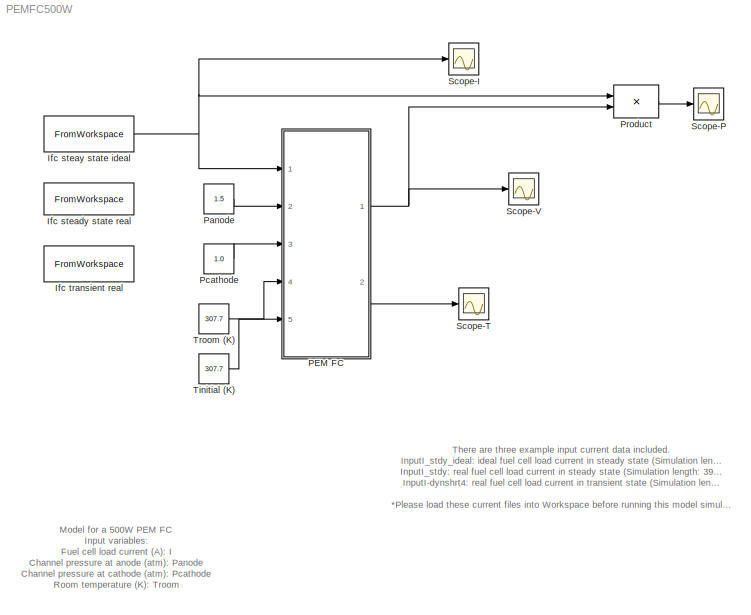
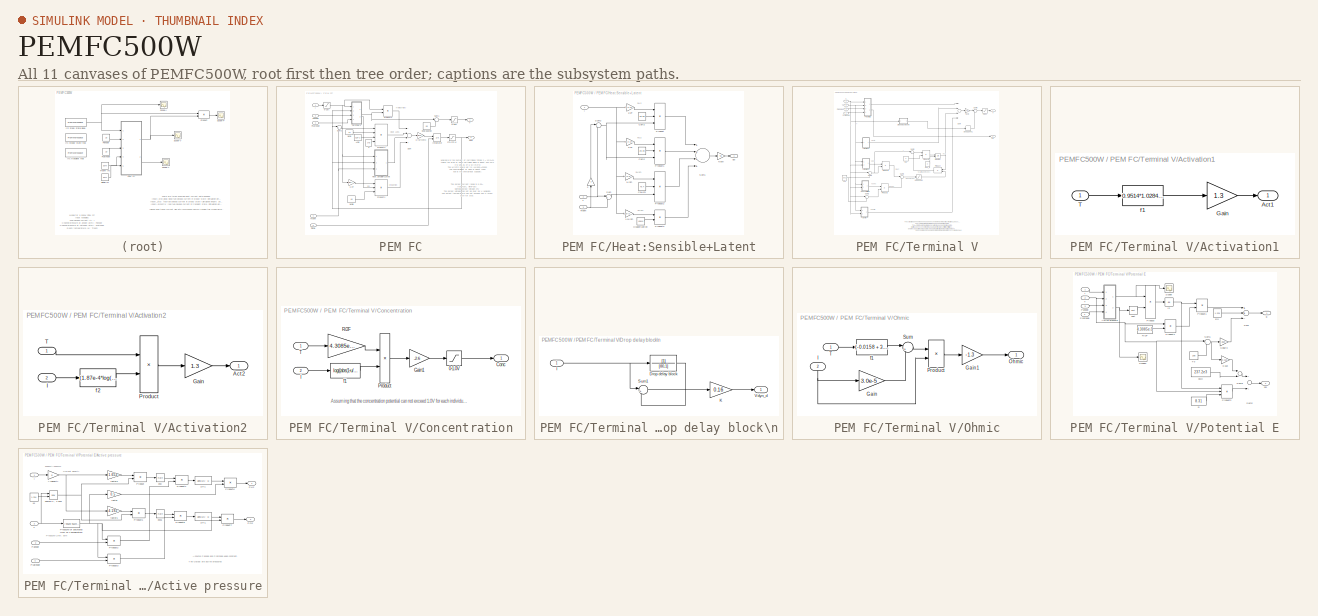
[diagram: thumbnail index - all 11 canvases of the model, root first then tree order]
MODEL PEMFC500W
KIND model
BLOCK [FromWorkspace] Ifc steady state real
  SampleTime = 0
  VariableName = InputI_stdy
BLOCK [FromWorkspace] Ifc steay state ideal
  SampleTime = 0
  VariableName = InputI_stdy_ideal
BLOCK [FromWorkspace] Ifc transient real
  SampleTime = 0
  VariableName = InputI_dynshrt4
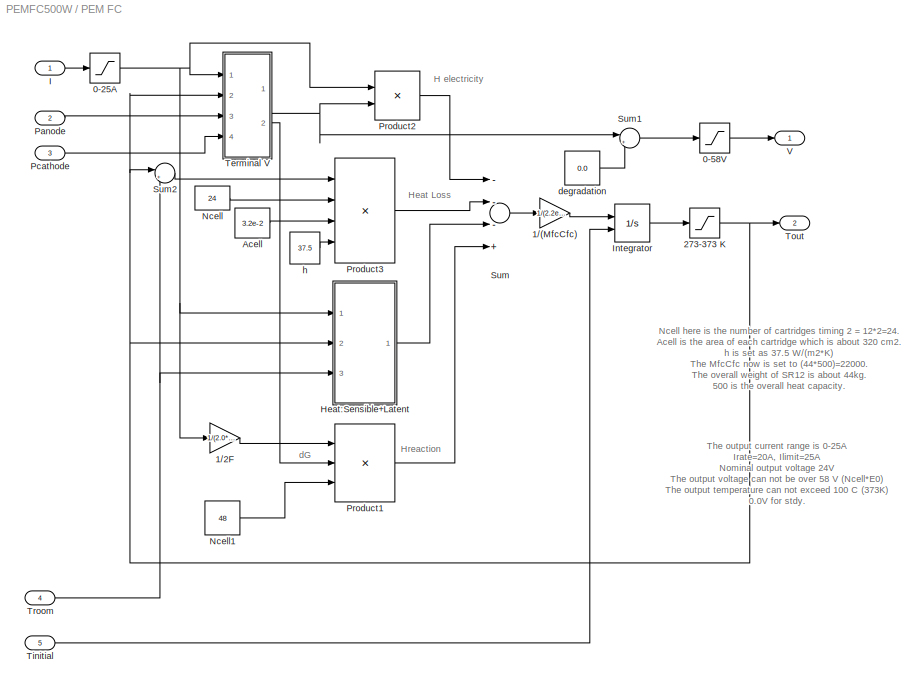
BLOCK [SubSystem] PEM FC
  MaskIconFrame = on
  MaskIconOpaque = on
  MaskIconRotate = none
  MaskIconUnits = autoscale
  MinAlgLoopOccurrences = off
  Ports = [5, 2]
  RTWSystemCode = Auto
  TreatAsAtomicUnit = off
BLOCK [Saturate] PEM FC/0-25A
  LowerLimit = 0
  UpperLimit = 25
BLOCK [Saturate] PEM FC/0-58V
  LowerLimit = 0
  UpperLimit = 58
BLOCK [Gain] PEM FC/1//(MfcCfc)
  Gain = 1/(2.2e4)
BLOCK [Gain] PEM FC/1//2F
  Gain = 1/(2.0*96487.0)
BLOCK [Saturate] PEM FC/273-373 K
  LowerLimit = 273.15
  UpperLimit = 373.15
BLOCK [Constant] PEM FC/Acell
  Value = 3.2e-2
BLOCK [SubSystem] PEM FC/Heat:Sensible+Latent
  MinAlgLoopOccurrences = off
  Ports = [3, 1]
  RTWSystemCode = Auto
  TreatAsAtomicUnit = off
BLOCK [Gain] PEM FC/Heat:Sensible+Latent/1.0//(2F)
  Gain = 1.0/(2.0*96487.0)
BLOCK [Gain] PEM FC/Heat:Sensible+Latent/1//(2F)
  Gain = 1/(2.0*96487.0)
BLOCK [Gain] PEM FC/Heat:Sensible+Latent/1//2F
  Gain = 1/(2.0*96487.0)
BLOCK [Gain] PEM FC/Heat:Sensible+Latent/1//4F
  Gain = 1/(4.0*96487.0)
BLOCK [Gain] PEM FC/Heat:Sensible+Latent/2
  Gain = 2
BLOCK [Constant] PEM FC/Heat:Sensible+Latent/CpH2
  Value = 28.68
BLOCK [Constant] PEM FC/Heat:Sensible+Latent/CpH2O
  Value = 75.4
BLOCK [Constant] PEM FC/Heat:Sensible+Latent/CpO2
  Value = 29.39
BLOCK [Constant] PEM FC/Heat:Sensible+Latent/Hvaporization
  Value = 40644
BLOCK [Inport] PEM FC/Heat:Sensible+Latent/I
  IconDisplay = Port number
  LatchInput = off
  Port = 1
BLOCK [Gain] PEM FC/Heat:Sensible+Latent/Ncell
  Gain = 48
BLOCK [Product] PEM FC/Heat:Sensible+Latent/Product
  InputSameDT = off
  Inputs = 3
  Ports = [3, 1]
  RndMeth = Floor
BLOCK [Product] PEM FC/Heat:Sensible+Latent/Product1
  InputSameDT = off
  Inputs = 3
  Ports = [3, 1]
  RndMeth = Floor
BLOCK [Product] PEM FC/Heat:Sensible+Latent/Product2
  InputSameDT = off
  Inputs = 3
  Ports = [3, 1]
  RndMeth = Floor
BLOCK [Product] PEM FC/Heat:Sensible+Latent/Product3
  InputSameDT = off
  Ports = [2, 1]
  RndMeth = Floor
BLOCK [Sum] PEM FC/Heat:Sensible+Latent/Sum
  IconShape = round
  InputSameDT = off
  Inputs = |+-
  OutDataTypeMode = Inherit via internal rule
  Ports = [2, 1]
BLOCK [Sum] PEM FC/Heat:Sensible+Latent/Sum1
  InputSameDT = off
  Inputs = ++++
  OutDataTypeMode = Inherit via internal rule
  Ports = [4, 1]
BLOCK [Sum] PEM FC/Heat:Sensible+Latent/Sum2
  IconShape = round
  InputSameDT = off
  Inputs = |+-
  OutDataTypeMode = Inherit via internal rule
  Ports = [2, 1]
BLOCK [Inport] PEM FC/Heat:Sensible+Latent/T
  IconDisplay = Port number
  LatchInput = off
  Port = 2
BLOCK [Inport] PEM FC/Heat:Sensible+Latent/Troom
  IconDisplay = Port number
  LatchInput = off
  Port = 3
BLOCK [Outport] PEM FC/Heat:Sensible+Latent/qsl
  IconDisplay = Port number
BLOCK [Inport] PEM FC/I
  IconDisplay = Port number
  LatchInput = off
  Port = 1
BLOCK [Integrator] PEM FC/Integrator
  InitialConditionSource = external
  Ports = [2, 1]
BLOCK [Constant] PEM FC/Ncell
  Value = 24
BLOCK [Constant] PEM FC/Ncell1
  Value = 48
BLOCK [Inport] PEM FC/Panode
  IconDisplay = Port number
  LatchInput = off
  Port = 2
BLOCK [Inport] PEM FC/Pcathode
  IconDisplay = Port number
  LatchInput = off
  Port = 3
BLOCK [Product] PEM FC/Product1
  InputSameDT = off
  Inputs = 3
  Ports = [3, 1]
  RndMeth = Floor
BLOCK [Product] PEM FC/Product2
  InputSameDT = off
  Ports = [2, 1]
  RndMeth = Floor
BLOCK [Product] PEM FC/Product3
  InputSameDT = off
  Inputs = 4
  Ports = [4, 1]
  RndMeth = Floor
BLOCK [Sum] PEM FC/Sum
  InputSameDT = off
  Inputs = ---+
  OutDataTypeMode = Inherit via internal rule
  Ports = [4, 1]
BLOCK [Sum] PEM FC/Sum1
  IconShape = round
  InputSameDT = off
  Inputs = |+-
  OutDataTypeMode = Inherit via internal rule
  Ports = [2, 1]
BLOCK [Sum] PEM FC/Sum2
  IconShape = round
  InputSameDT = off
  Inputs = |+-
  OutDataTypeMode = Inherit via internal rule
  Ports = [2, 1]
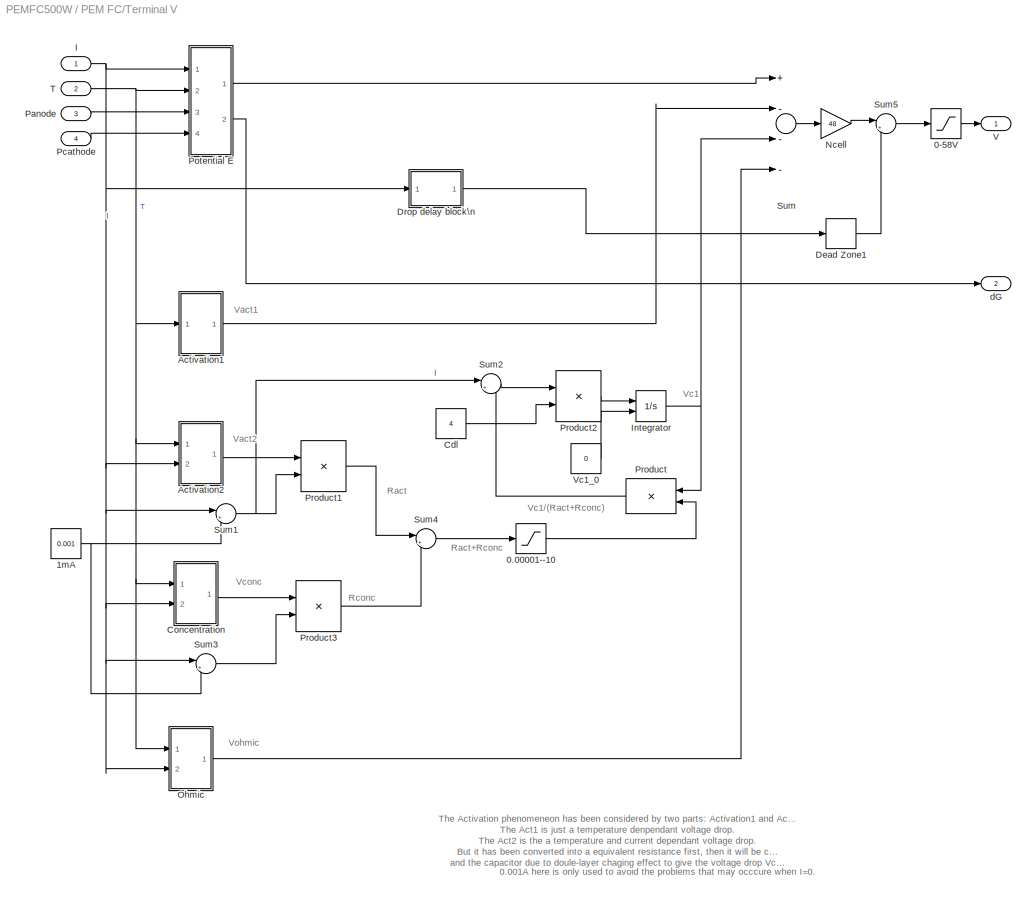
BLOCK [SubSystem] PEM FC/Terminal V
  MinAlgLoopOccurrences = off
  Ports = [4, 2]
  RTWSystemCode = Auto
  TreatAsAtomicUnit = off
BLOCK [Saturate] PEM FC/Terminal V/0-58V
  LowerLimit = 0
  UpperLimit = 58
BLOCK [Saturate] PEM FC/Terminal V/0.00001--10
  LowerLimit = 0.00001
  UpperLimit = 10
BLOCK [Constant] PEM FC/Terminal V/1mA
  Value = 0.001
BLOCK [SubSystem] PEM FC/Terminal V/Activation1
  MinAlgLoopOccurrences = off
  Ports = [1, 1]
  RTWSystemCode = Auto
  TreatAsAtomicUnit = off
BLOCK [Outport] PEM FC/Terminal V/Activation1/Act1
  IconDisplay = Port number
BLOCK [Gain] PEM FC/Terminal V/Activation1/Gain
  Gain = 1.3
BLOCK [Inport] PEM FC/Terminal V/Activation1/T
  IconDisplay = Port number
  LatchInput = off
  Port = 1
BLOCK [Fcn] PEM FC/Terminal V/Activation1/f1
  Expr = 0.9514*1.0284 - 2.2e-3*u
BLOCK [SubSystem] PEM FC/Terminal V/Activation2
  MinAlgLoopOccurrences = off
  Ports = [2, 1]
  RTWSystemCode = Auto
  TreatAsAtomicUnit = off
BLOCK [Outport] PEM FC/Terminal V/Activation2/Act2
  IconDisplay = Port number
BLOCK [Gain] PEM FC/Terminal V/Activation2/Gain
  Gain = 1.3
BLOCK [Inport] PEM FC/Terminal V/Activation2/I
  IconDisplay = Port number
  LatchInput = off
  Port = 2
BLOCK [Product] PEM FC/Terminal V/Activation2/Product
  InputSameDT = off
  Ports = [2, 1]
  RndMeth = Floor
BLOCK [Inport] PEM FC/Terminal V/Activation2/T
  IconDisplay = Port number
  LatchInput = off
  Port = 1
BLOCK [Fcn] PEM FC/Terminal V/Activation2/f2
  Expr = (1.87e-4*log(u+1))*0.40
BLOCK [Constant] PEM FC/Terminal V/Cdl
  Value = 4
BLOCK [SubSystem] PEM FC/Terminal V/Concentration
  MinAlgLoopOccurrences = off
  Ports = [2, 1]
  RTWSystemCode = Auto
  TreatAsAtomicUnit = off
BLOCK [Saturate] PEM FC/Terminal V/Concentration/0-1.0V
  LowerLimit = 0
  UpperLimit = 1.0
BLOCK [Outport] PEM FC/Terminal V/Concentration/Conc
  IconDisplay = Port number
BLOCK [Gain] PEM FC/Terminal V/Concentration/Gain1
  Gain = -2.6
BLOCK [Inport] PEM FC/Terminal V/Concentration/I
  IconDisplay = Port number
  LatchInput = off
  Port = 2
BLOCK [Product] PEM FC/Terminal V/Concentration/Product
  InputSameDT = off
  Ports = [2, 1]
  RndMeth = Floor
BLOCK [Gain] PEM FC/Terminal V/Concentration/R//2F
  Gain = 4.3085e-5
BLOCK [Inport] PEM FC/Terminal V/Concentration/T
  IconDisplay = Port number
  LatchInput = off
  Port = 1
BLOCK [Fcn] PEM FC/Terminal V/Concentration/f1
  Expr = log((abs(1-u/25))+1.0e-100)
BLOCK [DeadZone] PEM FC/Terminal V/Dead Zone1
  LowerValue = -0.05
  UpperValue = 0.05
BLOCK [SubSystem] PEM FC/Terminal V/Drop delay block\n
  MinAlgLoopOccurrences = off
  Ports = [1, 1]
  RTWSystemCode = Auto
  TreatAsAtomicUnit = off
BLOCK [TransferFcn] PEM FC/Terminal V/Drop delay block\n/Drop delay block
  Denominator = [80,1]
BLOCK [Inport] PEM FC/Terminal V/Drop delay block\n/I
  IconDisplay = Port number
  LatchInput = off
  Port = 1
BLOCK [Gain] PEM FC/Terminal V/Drop delay block\n/K
  Gain = 0.16
BLOCK [Sum] PEM FC/Terminal V/Drop delay block\n/Sum1
  IconShape = round
  InputSameDT = off
  Inputs = |+-
  OutDataTypeMode = Inherit via internal rule
  Ports = [2, 1]
BLOCK [Outport] PEM FC/Terminal V/Drop delay block\n/Vdyn_d
  IconDisplay = Port number
BLOCK [Inport] PEM FC/Terminal V/I
  IconDisplay = Port number
  LatchInput = off
  Port = 1
BLOCK [Integrator] PEM FC/Terminal V/Integrator
  InitialConditionSource = external
  Ports = [2, 1]
BLOCK [Gain] PEM FC/Terminal V/Ncell
  Gain = 48
BLOCK [SubSystem] PEM FC/Terminal V/Ohmic
  MinAlgLoopOccurrences = off
  Ports = [2, 1]
  RTWSystemCode = Auto
  TreatAsAtomicUnit = off
BLOCK [Gain] PEM FC/Terminal V/Ohmic/Gain
  Gain = 3.0e-5
BLOCK [Gain] PEM FC/Terminal V/Ohmic/Gain1
  Gain = -1.3
BLOCK [Inport] PEM FC/Terminal V/Ohmic/I
  IconDisplay = Port number
  LatchInput = off
  Port = 2
BLOCK [Outport] PEM FC/Terminal V/Ohmic/Ohmic
  IconDisplay = Port number
BLOCK [Product] PEM FC/Terminal V/Ohmic/Product
  InputSameDT = off
  Ports = [2, 1]
  RndMeth = Floor
BLOCK [Sum] PEM FC/Terminal V/Ohmic/Sum
  IconShape = round
  InputSameDT = off
  Inputs = |+-
  OutDataTypeMode = Inherit via internal rule
  Ports = [2, 1]
BLOCK [Inport] PEM FC/Terminal V/Ohmic/T
  IconDisplay = Port number
  LatchInput = off
  Port = 1
BLOCK [Fcn] PEM FC/Terminal V/Ohmic/f1
  Expr = (-0.0158 + 3.8e-5*u)
BLOCK [Inport] PEM FC/Terminal V/Panode
  IconDisplay = Port number
  LatchInput = off
  Port = 3
BLOCK [Inport] PEM FC/Terminal V/Pcathode
  IconDisplay = Port number
  LatchInput = off
  Port = 4
BLOCK [SubSystem] PEM FC/Terminal V/Potential E
  MinAlgLoopOccurrences = off
  Ports = [4, 2]
  RTWSystemCode = Auto
  TreatAsAtomicUnit = off
BLOCK [Gain] PEM FC/Terminal V/Potential E/0.163
  Gain = 0.163
BLOCK [Gain] PEM FC/Terminal V/Potential E/0.85e-3
  Gain = 0.85e-3
BLOCK [SubSystem] PEM FC/Terminal V/Potential E/Active pressure
  MinAlgLoopOccurrences = off
  Ports = [4, 2]
  RTWSystemCode = Auto
  TreatAsAtomicUnit = off
BLOCK [Fcn] PEM FC/Terminal V/Potential E/Active pressure/1//x-1
  Expr = abs(1/u - 1)
BLOCK [Fcn] PEM FC/Terminal V/Potential E/Active pressure/1//x-1.
  Expr = abs(1/u - 1)
BLOCK [Inport] PEM FC/Terminal V/Potential E/Active pressure/I
  IconDisplay = Port number
  LatchInput = off
  Port = 1
BLOCK [Gain] PEM FC/Terminal V/Potential E/Active pressure/I-Idensity
  Gain = 5
BLOCK [Outport] PEM FC/Terminal V/Potential E/Active pressure/PH2
  IconDisplay = Port number
BLOCK [Outport] PEM FC/Terminal V/Potential E/Active pressure/PO2
  IconDisplay = Port number
  Port = 2
BLOCK [Inport] PEM FC/Terminal V/Potential E/Active pressure/Panode
  IconDisplay = Port number
  LatchInput = off
  Port = 3
BLOCK [Inport] PEM FC/Terminal V/Potential E/Active pressure/Pcathode
  IconDisplay = Port number
  LatchInput = off
  Port = 4
BLOCK [Fcn] PEM FC/Terminal V/Potential E/Active pressure/Pressure of saturated H2O vs Temperature
  Expr = (-40529.4522405347 + 401.94033912153*u-1.33430273535993*(u^2) + 0.00148378443819808*(u^3))/760
BLOCK [Product] PEM FC/Terminal V/Potential E/Active pressure/Product
  InputSameDT = off
  Inputs = */
  Ports = [2, 1]
  RndMeth = Floor
BLOCK [Product] PEM FC/Terminal V/Potential E/Active pressure/Product1
  InputSameDT = off
  Inputs = */
  Ports = [2, 1]
  RndMeth = Floor
BLOCK [Product] PEM FC/Terminal V/Potential E/Active pressure/Product2
  InputSameDT = off
  Inputs = */
  Ports = [2, 1]
  RndMeth = Floor
BLOCK [Product] PEM FC/Terminal V/Potential E/Active pressure/Product3
  InputSameDT = off
  Inputs = */
  Ports = [2, 1]
  RndMeth = Floor
BLOCK [Product] PEM FC/Terminal V/Potential E/Active pressure/Product4
  InputSameDT = off
  Ports = [2, 1]
  RndMeth = Floor
BLOCK [Product] PEM FC/Terminal V/Potential E/Active pressure/Product5
  InputSameDT = off
  Ports = [2, 1]
  RndMeth = Floor
BLOCK [Product] PEM FC/Terminal V/Potential E/Active pressure/Product6
  InputSameDT = off
  Ports = [2, 1]
  RndMeth = Floor
BLOCK [Product] PEM FC/Terminal V/Potential E/Active pressure/Product7
  InputSameDT = off
  Ports = [2, 1]
  RndMeth = Floor
BLOCK [Inport] PEM FC/Terminal V/Potential E/Active pressure/T
  IconDisplay = Port number
  LatchInput = off
  Port = 2
BLOCK [Math] PEM FC/Terminal V/Potential E/Active pressure/exp
  Ports = [1, 1]
BLOCK [Math] PEM FC/Terminal V/Potential E/Active pressure/exp1
  Ports = [1, 1]
BLOCK [Gain] PEM FC/Terminal V/Potential E/Active pressure/factor
  Gain = 0.5
BLOCK [Gain] PEM FC/Terminal V/Potential E/Active pressure/factor1
  Gain = 4.192
BLOCK [Gain] PEM FC/Terminal V/Potential E/Active pressure/factor2
  Gain = 1.653
BLOCK [Constant] PEM FC/Terminal V/Potential E/Active pressure/k1
  Value = 1.334
BLOCK [Math] PEM FC/Terminal V/Potential E/Active pressure/power(T, 1.334)
  Operator = pow
  Ports = [2, 1]
BLOCK [Outport] PEM FC/Terminal V/Potential E/E
  IconDisplay = Port number
BLOCK [Constant] PEM FC/Terminal V/Potential E/E0
  Value = 1.229
BLOCK [Inport] PEM FC/Terminal V/Potential E/I
  IconDisplay = Port number
  LatchInput = off
  Port = 1
BLOCK [Inport] PEM FC/Terminal V/Potential E/Panode
  IconDisplay = Port number
  LatchInput = off
  Port = 3
BLOCK [Inport] PEM FC/Terminal V/Potential E/Pcathode
  IconDisplay = Port number
  LatchInput = off
  Port = 4
BLOCK [Product] PEM FC/Terminal V/Potential E/Product
  InputSameDT = off
  Ports = [2, 1]
  RndMeth = Floor
BLOCK [Product] PEM FC/Terminal V/Potential E/Product1
  InputSameDT = off
  Ports = [2, 1]
  RndMeth = Floor
BLOCK [Product] PEM FC/Terminal V/Potential E/Product2
  InputSameDT = off
  Inputs = 3
  Ports = [3, 1]
  RndMeth = Floor
BLOCK [Product] PEM FC/Terminal V/Potential E/Product4
  InputSameDT = off
  Ports = [2, 1]
  RndMeth = Floor
BLOCK [Constant] PEM FC/Terminal V/Potential E/R
  Value = 8.31
BLOCK [Constant] PEM FC/Terminal V/Potential E/R//2F
  Value = 4.3085e-5
BLOCK [Scope] PEM FC/Terminal V/Potential E/Scope
  DataFormat = Array
  MaxDataPoints = 500000
  NumInputPorts = 1
  Ports = [1]
  SaveName = Ph2
  SaveToWorkspace = on
BLOCK [Scope] PEM FC/Terminal V/Potential E/Scope1
  DataFormat = Array
  MaxDataPoints = 500000
  NumInputPorts = 1
  Ports = [1]
  SaveName = Po2
  SaveToWorkspace = on
BLOCK [Sum] PEM FC/Terminal V/Potential E/Sum
  InputSameDT = off
  Inputs = ++-
  OutDataTypeMode = Inherit via internal rule
  Ports = [3, 1]
BLOCK [Sum] PEM FC/Terminal V/Potential E/Sum1
  IconShape = round
  InputSameDT = off
  Inputs = |+-
  OutDataTypeMode = Inherit via internal rule
  Ports = [2, 1]
BLOCK [Sum] PEM FC/Terminal V/Potential E/Sum2
  InputSameDT = off
  OutDataTypeMode = Inherit via internal rule
  Ports = [2, 1]
BLOCK [Sum] PEM FC/Terminal V/Potential E/Sum3
  InputSameDT = off
  Inputs = -+
  OutDataTypeMode = Inherit via internal rule
  Ports = [2, 1]
BLOCK [Inport] PEM FC/Terminal V/Potential E/T
  IconDisplay = Port number
  LatchInput = off
  Port = 2
BLOCK [Constant] PEM FC/Terminal V/Potential E/T0
  Value = 298
BLOCK [Outport] PEM FC/Terminal V/Potential E/dG
  IconDisplay = Port number
  Port = 2
BLOCK [Constant] PEM FC/Terminal V/Potential E/dG0
  Value = 237.2e3
BLOCK [Math] PEM FC/Terminal V/Potential E/ln
  Operator = log
  Ports = [1, 1]
BLOCK [Math] PEM FC/Terminal V/Potential E/sqrt
  Operator = sqrt
  Ports = [1, 1]
BLOCK [Product] PEM FC/Terminal V/Product
  InputSameDT = off
  Inputs = */
  Ports = [2, 1]
  RndMeth = Floor
BLOCK [Product] PEM FC/Terminal V/Product1
  InputSameDT = off
  Inputs = */
  Ports = [2, 1]
  RndMeth = Floor
BLOCK [Product] PEM FC/Terminal V/Product2
  InputSameDT = off
  Inputs = */
  Ports = [2, 1]
  RndMeth = Floor
BLOCK [Product] PEM FC/Terminal V/Product3
  InputSameDT = off
  Inputs = */
  Ports = [2, 1]
  RndMeth = Floor
BLOCK [Sum] PEM FC/Terminal V/Sum
  InputSameDT = off
  Inputs = +---
  OutDataTypeMode = Inherit via internal rule
  Ports = [4, 1]
BLOCK [Sum] PEM FC/Terminal V/Sum1
  IconShape = round
  InputSameDT = off
  Inputs = |++
  OutDataTypeMode = Inherit via internal rule
  Ports = [2, 1]
BLOCK [Sum] PEM FC/Terminal V/Sum2
  IconShape = round
  InputSameDT = off
  Inputs = |+-
  OutDataTypeMode = Inherit via internal rule
  Ports = [2, 1]
BLOCK [Sum] PEM FC/Terminal V/Sum3
  IconShape = round
  InputSameDT = off
  Inputs = |++
  OutDataTypeMode = Inherit via internal rule
  Ports = [2, 1]
BLOCK [Sum] PEM FC/Terminal V/Sum4
  IconShape = round
  InputSameDT = off
  Inputs = |++
  OutDataTypeMode = Inherit via internal rule
  Ports = [2, 1]
BLOCK [Sum] PEM FC/Terminal V/Sum5
  IconShape = round
  InputSameDT = off
  Inputs = |+-
  OutDataTypeMode = Inherit via internal rule
  Ports = [2, 1]
BLOCK [Inport] PEM FC/Terminal V/T
  IconDisplay = Port number
  LatchInput = off
  Port = 2
BLOCK [Outport] PEM FC/Terminal V/V
  IconDisplay = Port number
BLOCK [Constant] PEM FC/Terminal V/Vc1_0
  Value = 0
BLOCK [Outport] PEM FC/Terminal V/dG
  IconDisplay = Port number
  Port = 2
BLOCK [Inport] PEM FC/Tinitial
  IconDisplay = Port number
  LatchInput = off
  Port = 5
BLOCK [Outport] PEM FC/Tout
  IconDisplay = Port number
  Port = 2
BLOCK [Inport] PEM FC/Troom
  IconDisplay = Port number
  LatchInput = off
  Port = 4
BLOCK [Outport] PEM FC/V
  IconDisplay = Port number
BLOCK [Constant] PEM FC/degradation
  Value = 0.0
BLOCK [Constant] PEM FC/h
  Value = 37.5
BLOCK [Constant] Panode
  Value = 1.5
BLOCK [Constant] Pcathode
  Value = 1.0
BLOCK [Product] Product
  InputSameDT = off
  OutDataTypeMode = double
  Ports = [2, 1]
  RndMeth = Floor
BLOCK [Scope] Scope-I
  DataFormat = Array
  MaxDataPoints = 5000000
  NumInputPorts = 1
  Ports = [1]
  SaveName = Ist
  SaveToWorkspace = on
  YMax = 18
  YMin = 4
BLOCK [Scope] Scope-P
  DataFormat = Array
  MaxDataPoints = 500000
  NumInputPorts = 1
  Ports = [1]
  SaveName = P
  SaveToWorkspace = on
BLOCK [Scope] Scope-T
  DataFormat = Array
  MaxDataPoints = 500000
  NumInputPorts = 1
  Ports = [1]
  SaveName = Tst
  SaveToWorkspace = on
BLOCK [Scope] Scope-V
  DataFormat = Array
  MaxDataPoints = 5000000
  NumInputPorts = 1
  Ports = [1]
  SaveName = Vst
  SaveToWorkspace = on
  YMax = 35.67
  YMin = 35.615
BLOCK [Constant] Tinitial (K)
  Value = 307.7
BLOCK [Constant] Troom (K)
  Value = 307.7
ANNOTATION (root): Model for a 500W PEM FC\nInput variables:\nFuel cell load current (A): I\nChannel pressure at anode (atm): Panode\nChannel pressure at cathode (atm): Pcathode\nRoom temperature (K): Troom\nInitial temperature of FC (K): Tinitial\n(Pandoe and Pcathode are assumed constant in the model.)\n\n==============================\nOutput variables:\nOutput terminal voltage (V): V\nFC temperature (K): Tout\n
ANNOTATION (root): There are three example input current data included.\nInputI_stdy_ideal: ideal fuel cell load current in steady state (Simulation length: 4900s)\nInputI_stdy: real fuel cell load current in steady state (Simulation length: 3900s)\nInputI-dynshrt4: real fuel cell load current in transient state (Simulation length: 2040s)\n\n*Please load these current files into Workspace before running this model s...<+10ch>
ANNOTATION PEM FC: H electricity
ANNOTATION PEM FC: Heat Loss
ANNOTATION PEM FC: Hreaction
ANNOTATION PEM FC: Ncell here is the number of cartridges timing 2 = 12*2=24.\nAcell is the area of each cartridge which is about 320 cm2.\nh is set as 37.5 W/(m2*K)\nThe MfcCfc now is set to (44*500)=22000.\nThe overall weight of SR12 is about 44kg.\n500 is the overall heat capacity.\n(The original McCfc is 3.5e4. and the original h=50.)
ANNOTATION PEM FC: The output current range is 0-25A\nIrate=20A, Ilimit=25A\nNominal output voltage 24V\nThe output voltage can not be over 58 V (Ncell*E0)\nThe output temperature can not exceed 100 C (373K)\n0.0V for stdy.\n0.35V for cell degradation
ANNOTATION PEM FC: dG
ANNOTATION PEM FC/Heat:Sensible+Latent: nH2
ANNOTATION PEM FC/Heat:Sensible+Latent: nH2O
ANNOTATION PEM FC/Heat:Sensible+Latent: nO2
ANNOTATION PEM FC/Terminal V: 0.001A here is only used to avoid the problems that may occcure when I=0.
ANNOTATION PEM FC/Terminal V: I
ANNOTATION PEM FC/Terminal V: Ract
ANNOTATION PEM FC/Terminal V: Ract+Rconc
ANNOTATION PEM FC/Terminal V: Rconc
ANNOTATION PEM FC/Terminal V: The Activation phenomeneon has been considered by two parts: Activation1 and Activation2.\nThe Act1 is just a temperature denpendant voltage drop.\nThe Act2 is the a temperature and current dependant voltage drop. \nBut it has been converted into a equivalent resistance first, then it will be combined together with Rconc \nand the capacitor due to doule-layer chaging effect to give the voltage dro...<+6ch>
ANNOTATION PEM FC/Terminal V: Vact1
ANNOTATION PEM FC/Terminal V: Vact2
ANNOTATION PEM FC/Terminal V: Vc1
ANNOTATION PEM FC/Terminal V: Vc1/(Ract+Rconc)
ANNOTATION PEM FC/Terminal V: Vconc
ANNOTATION PEM FC/Terminal V: Vohmic
ANNOTATION PEM FC/Terminal V/Concentration: Assuming that the concentration potential can not exceed 1.0V for each individual cell
ANNOTATION PEM FC/Terminal V/Potential E/Active pressure: 1000mA/200cm2
ANNOTATION PEM FC/Terminal V/Potential E/Active pressure: Assume Panode and Pcathode keep constant.
ANNOTATION PEM FC/Terminal V/Potential E/Active pressure: Current density
ANNOTATION PEM FC/Terminal V/Potential E/Active pressure: Pressure Unit: atm
ANNOTATION PEM FC/Terminal V/Potential E/Active pressure: The Output are active pressures
NET Ifc steay state ideal:1 -> PEM FC:1, Product:1, Scope-I:1
NET PEM FC/0-25A:1 -> PEM FC/1//2F:1, PEM FC/Heat:Sensible+Latent:1, PEM FC/Product2:1, PEM FC/Terminal V:1
LINE PEM FC/0-58V:1 -> PEM FC/V:1
LINE PEM FC/1//(MfcCfc):1 -> PEM FC/Integrator:1
LINE PEM FC/1//2F:1 -> PEM FC/Product1:1
NET PEM FC/273-373 K:1 -> PEM FC/Heat:Sensible+Latent:2, PEM FC/Sum2:1, PEM FC/Terminal V:2, PEM FC/Tout:1
LINE PEM FC/Acell:1 -> PEM FC/Product3:3
LINE PEM FC/Heat:Sensible+Latent/1.0//(2F):1 -> PEM FC/Heat:Sensible+Latent/Product3:1
LINE PEM FC/Heat:Sensible+Latent/1//(2F):1 -> PEM FC/Heat:Sensible+Latent/Product2:1
LINE PEM FC/Heat:Sensible+Latent/1//2F:1 -> PEM FC/Heat:Sensible+Latent/Product:1
LINE PEM FC/Heat:Sensible+Latent/1//4F:1 -> PEM FC/Heat:Sensible+Latent/Product1:1
LINE PEM FC/Heat:Sensible+Latent/2:1 -> PEM FC/Heat:Sensible+Latent/Sum2:1
LINE PEM FC/Heat:Sensible+Latent/CpH2:1 -> PEM FC/Heat:Sensible+Latent/Product:2
LINE PEM FC/Heat:Sensible+Latent/CpH2O:1 -> PEM FC/Heat:Sensible+Latent/Product2:2
LINE PEM FC/Heat:Sensible+Latent/CpO2:1 -> PEM FC/Heat:Sensible+Latent/Product1:2
LINE PEM FC/Heat:Sensible+Latent/Hvaporization:1 -> PEM FC/Heat:Sensible+Latent/Product3:2
NET PEM FC/Heat:Sensible+Latent/I:1 -> PEM FC/Heat:Sensible+Latent/1.0//(2F):1, PEM FC/Heat:Sensible+Latent/1//(2F):1, PEM FC/Heat:Sensible+Latent/1//2F:1, PEM FC/Heat:Sensible+Latent/1//4F:1
LINE PEM FC/Heat:Sensible+Latent/Ncell:1 -> PEM FC/Heat:Sensible+Latent/qsl:1
LINE PEM FC/Heat:Sensible+Latent/Product1:1 -> PEM FC/Heat:Sensible+Latent/Sum1:2
LINE PEM FC/Heat:Sensible+Latent/Product2:1 -> PEM FC/Heat:Sensible+Latent/Sum1:3
LINE PEM FC/Heat:Sensible+Latent/Product3:1 -> PEM FC/Heat:Sensible+Latent/Sum1:4
LINE PEM FC/Heat:Sensible+Latent/Product:1 -> PEM FC/Heat:Sensible+Latent/Sum1:1
LINE PEM FC/Heat:Sensible+Latent/Sum1:1 -> PEM FC/Heat:Sensible+Latent/Ncell:1
NET PEM FC/Heat:Sensible+Latent/Sum2:1 -> PEM FC/Heat:Sensible+Latent/Product1:3, PEM FC/Heat:Sensible+Latent/Product:3
LINE PEM FC/Heat:Sensible+Latent/Sum:1 -> PEM FC/Heat:Sensible+Latent/Product2:3
NET PEM FC/Heat:Sensible+Latent/T:1 -> PEM FC/Heat:Sensible+Latent/Sum2:2, PEM FC/Heat:Sensible+Latent/Sum:1
NET PEM FC/Heat:Sensible+Latent/Troom:1 -> PEM FC/Heat:Sensible+Latent/2:1, PEM FC/Heat:Sensible+Latent/Sum:2
LINE PEM FC/Heat:Sensible+Latent:1 -> PEM FC/Sum:3
LINE PEM FC/I:1 -> PEM FC/0-25A:1
LINE PEM FC/Integrator:1 -> PEM FC/273-373 K:1
LINE PEM FC/Ncell1:1 -> PEM FC/Product1:3
LINE PEM FC/Ncell:1 -> PEM FC/Product3:2
LINE PEM FC/Panode:1 -> PEM FC/Terminal V:3
LINE PEM FC/Pcathode:1 -> PEM FC/Terminal V:4
LINE PEM FC/Product1:1 -> PEM FC/Sum:4
LINE PEM FC/Product2:1 -> PEM FC/Sum:1
LINE PEM FC/Product3:1 -> PEM FC/Sum:2
LINE PEM FC/Sum1:1 -> PEM FC/0-58V:1
LINE PEM FC/Sum2:1 -> PEM FC/Product3:1
LINE PEM FC/Sum:1 -> PEM FC/1//(MfcCfc):1
LINE PEM FC/Terminal V/0-58V:1 -> PEM FC/Terminal V/V:1
LINE PEM FC/Terminal V/0.00001--10:1 -> PEM FC/Terminal V/Product:2
NET PEM FC/Terminal V/1mA:1 -> PEM FC/Terminal V/Sum1:2, PEM FC/Terminal V/Sum3:2
LINE PEM FC/Terminal V/Activation1/Gain:1 -> PEM FC/Terminal V/Activation1/Act1:1
LINE PEM FC/Terminal V/Activation1/T:1 -> PEM FC/Terminal V/Activation1/f1:1
LINE PEM FC/Terminal V/Activation1/f1:1 -> PEM FC/Terminal V/Activation1/Gain:1
LINE PEM FC/Terminal V/Activation1:1 -> PEM FC/Terminal V/Sum:2
LINE PEM FC/Terminal V/Activation2/Gain:1 -> PEM FC/Terminal V/Activation2/Act2:1
LINE PEM FC/Terminal V/Activation2/I:1 -> PEM FC/Terminal V/Activation2/f2:1
LINE PEM FC/Terminal V/Activation2/Product:1 -> PEM FC/Terminal V/Activation2/Gain:1
LINE PEM FC/Terminal V/Activation2/T:1 -> PEM FC/Terminal V/Activation2/Product:1
LINE PEM FC/Terminal V/Activation2/f2:1 -> PEM FC/Terminal V/Activation2/Product:2
LINE PEM FC/Terminal V/Activation2:1 -> PEM FC/Terminal V/Product1:1
LINE PEM FC/Terminal V/Cdl:1 -> PEM FC/Terminal V/Product2:2
LINE PEM FC/Terminal V/Concentration/0-1.0V:1 -> PEM FC/Terminal V/Concentration/Conc:1
LINE PEM FC/Terminal V/Concentration/Gain1:1 -> PEM FC/Terminal V/Concentration/0-1.0V:1
LINE PEM FC/Terminal V/Concentration/I:1 -> PEM FC/Terminal V/Concentration/f1:1
LINE PEM FC/Terminal V/Concentration/Product:1 -> PEM FC/Terminal V/Concentration/Gain1:1
LINE PEM FC/Terminal V/Concentration/R//2F:1 -> PEM FC/Terminal V/Concentration/Product:1
LINE PEM FC/Terminal V/Concentration/T:1 -> PEM FC/Terminal V/Concentration/R//2F:1
LINE PEM FC/Terminal V/Concentration/f1:1 -> PEM FC/Terminal V/Concentration/Product:2
LINE PEM FC/Terminal V/Concentration:1 -> PEM FC/Terminal V/Product3:1
LINE PEM FC/Terminal V/Dead Zone1:1 -> PEM FC/Terminal V/Sum5:2
LINE PEM FC/Terminal V/Drop delay block\n/Drop delay block:1 -> PEM FC/Terminal V/Drop delay block\n/Sum1:2
NET PEM FC/Terminal V/Drop delay block\n/I:1 -> PEM FC/Terminal V/Drop delay block\n/Drop delay block:1, PEM FC/Terminal V/Drop delay block\n/Sum1:1
LINE PEM FC/Terminal V/Drop delay block\n/K:1 -> PEM FC/Terminal V/Drop delay block\n/Vdyn_d:1
LINE PEM FC/Terminal V/Drop delay block\n/Sum1:1 -> PEM FC/Terminal V/Drop delay block\n/K:1
LINE PEM FC/Terminal V/Drop delay block\n:1 -> PEM FC/Terminal V/Dead Zone1:1
NET PEM FC/Terminal V/I:1 -> PEM FC/Terminal V/Activation2:2, PEM FC/Terminal V/Concentration:2, PEM FC/Terminal V/Drop delay block\n:1, PEM FC/Terminal V/Ohmic:2, PEM FC/Terminal V/Potential E:1, PEM FC/Terminal V/Sum1:1, PEM FC/Terminal V/Sum3:1
NET PEM FC/Terminal V/Integrator:1 -> PEM FC/Terminal V/Product:1, PEM FC/Terminal V/Sum:3
LINE PEM FC/Terminal V/Ncell:1 -> PEM FC/Terminal V/Sum5:1
LINE PEM FC/Terminal V/Ohmic/Gain1:1 -> PEM FC/Terminal V/Ohmic/Ohmic:1
LINE PEM FC/Terminal V/Ohmic/Gain:1 -> PEM FC/Terminal V/Ohmic/Sum:2
NET PEM FC/Terminal V/Ohmic/I:1 -> PEM FC/Terminal V/Ohmic/Gain:1, PEM FC/Terminal V/Ohmic/Product:2
LINE PEM FC/Terminal V/Ohmic/Product:1 -> PEM FC/Terminal V/Ohmic/Gain1:1
LINE PEM FC/Terminal V/Ohmic/Sum:1 -> PEM FC/Terminal V/Ohmic/Product:1
LINE PEM FC/Terminal V/Ohmic/T:1 -> PEM FC/Terminal V/Ohmic/f1:1
LINE PEM FC/Terminal V/Ohmic/f1:1 -> PEM FC/Terminal V/Ohmic/Sum:1
LINE PEM FC/Terminal V/Ohmic:1 -> PEM FC/Terminal V/Sum:4
LINE PEM FC/Terminal V/Panode:1 -> PEM FC/Terminal V/Potential E:3
LINE PEM FC/Terminal V/Pcathode:1 -> PEM FC/Terminal V/Potential E:4
LINE PEM FC/Terminal V/Potential E/0.163:1 -> PEM FC/Terminal V/Potential E/Sum3:1
LINE PEM FC/Terminal V/Potential E/0.85e-3:1 -> PEM FC/Terminal V/Potential E/Sum:3
LINE PEM FC/Terminal V/Potential E/Active pressure/1//x-1.:1 -> PEM FC/Terminal V/Potential E/Active pressure/Product7:1
LINE PEM FC/Terminal V/Potential E/Active pressure/1//x-1:1 -> PEM FC/Terminal V/Potential E/Active pressure/Product6:1
NET PEM FC/Terminal V/Potential E/Active pressure/I-Idensity:1 -> PEM FC/Terminal V/Potential E/Active pressure/factor1:1, PEM FC/Terminal V/Potential E/Active pressure/factor2:1
LINE PEM FC/Terminal V/Potential E/Active pressure/I:1 -> PEM FC/Terminal V/Potential E/Active pressure/I-Idensity:1
LINE PEM FC/Terminal V/Potential E/Active pressure/Panode:1 -> PEM FC/Terminal V/Potential E/Active pressure/Product2:2
LINE PEM FC/Terminal V/Potential E/Active pressure/Pcathode:1 -> PEM FC/Terminal V/Potential E/Active pressure/Product3:2
NET PEM FC/Terminal V/Potential E/Active pressure/Pressure of saturated H2O vs Temperature:1 -> PEM FC/Terminal V/Potential E/Active pressure/Product2:1, PEM FC/Terminal V/Potential E/Active pressure/Product3:1, PEM FC/Terminal V/Potential E/Active pressure/Product7:2, PEM FC/Terminal V/Potential E/Active pressure/factor:1
LINE PEM FC/Terminal V/Potential E/Active pressure/Product1:1 -> PEM FC/Terminal V/Potential E/Active pressure/exp1:1
LINE PEM FC/Terminal V/Potential E/Active pressure/Product2:1 -> PEM FC/Terminal V/Potential E/Active pressure/Product4:2
LINE PEM FC/Terminal V/Potential E/Active pressure/Product3:1 -> PEM FC/Terminal V/Potential E/Active pressure/Product5:2
LINE PEM FC/Terminal V/Potential E/Active pressure/Product4:1 -> PEM FC/Terminal V/Potential E/Active pressure/1//x-1:1
LINE PEM FC/Terminal V/Potential E/Active pressure/Product5:1 -> PEM FC/Terminal V/Potential E/Active pressure/1//x-1.:1
LINE PEM FC/Terminal V/Potential E/Active pressure/Product6:1 -> PEM FC/Terminal V/Potential E/Active pressure/PH2:1
LINE PEM FC/Terminal V/Potential E/Active pressure/Product7:1 -> PEM FC/Terminal V/Potential E/Active pressure/PO2:1
LINE PEM FC/Terminal V/Potential E/Active pressure/Product:1 -> PEM FC/Terminal V/Potential E/Active pressure/exp:1
NET PEM FC/Terminal V/Potential E/Active pressure/T:1 -> PEM FC/Terminal V/Potential E/Active pressure/Pressure of saturated H2O vs Temperature:1, PEM FC/Terminal V/Potential E/Active pressure/power(T, 1.334):1
LINE PEM FC/Terminal V/Potential E/Active pressure/exp1:1 -> PEM FC/Terminal V/Potential E/Active pressure/Product5:1
LINE PEM FC/Terminal V/Potential E/Active pressure/exp:1 -> PEM FC/Terminal V/Potential E/Active pressure/Product4:1
LINE PEM FC/Terminal V/Potential E/Active pressure/factor1:1 -> PEM FC/Terminal V/Potential E/Active pressure/Product1:1
LINE PEM FC/Terminal V/Potential E/Active pressure/factor2:1 -> PEM FC/Terminal V/Potential E/Active pressure/Product:1
LINE PEM FC/Terminal V/Potential E/Active pressure/factor:1 -> PEM FC/Terminal V/Potential E/Active pressure/Product6:2
LINE PEM FC/Terminal V/Potential E/Active pressure/k1:1 -> PEM FC/Terminal V/Potential E/Active pressure/power(T, 1.334):2
NET PEM FC/Terminal V/Potential E/Active pressure/power(T, 1.334):1 -> PEM FC/Terminal V/Potential E/Active pressure/Product1:2, PEM FC/Terminal V/Potential E/Active pressure/Product:2
NET PEM FC/Terminal V/Potential E/Active pressure:1 -> PEM FC/Terminal V/Potential E/Product:1, PEM FC/Terminal V/Potential E/Scope:1
NET PEM FC/Terminal V/Potential E/Active pressure:2 -> PEM FC/Terminal V/Potential E/Scope1:1, PEM FC/Terminal V/Potential E/sqrt:1
LINE PEM FC/Terminal V/Potential E/E0:1 -> PEM FC/Terminal V/Potential E/Sum:2
LINE PEM FC/Terminal V/Potential E/I:1 -> PEM FC/Terminal V/Potential E/Active pressure:1
LINE PEM FC/Terminal V/Potential E/Panode:1 -> PEM FC/Terminal V/Potential E/Active pressure:3
LINE PEM FC/Terminal V/Potential E/Pcathode:1 -> PEM FC/Terminal V/Potential E/Active pressure:4
LINE PEM FC/Terminal V/Potential E/Product1:1 -> PEM FC/Terminal V/Potential E/Sum:1
LINE PEM FC/Terminal V/Potential E/Product2:1 -> PEM FC/Terminal V/Potential E/Sum2:2
LINE PEM FC/Terminal V/Potential E/Product4:1 -> PEM FC/Terminal V/Potential E/Product1:2
LINE PEM FC/Terminal V/Potential E/Product:1 -> PEM FC/Terminal V/Potential E/ln:1
LINE PEM FC/Terminal V/Potential E/R//2F:1 -> PEM FC/Terminal V/Potential E/Product4:2
LINE PEM FC/Terminal V/Potential E/R:1 -> PEM FC/Terminal V/Potential E/Product2:3
NET PEM FC/Terminal V/Potential E/Sum1:1 -> PEM FC/Terminal V/Potential E/0.163:1, PEM FC/Terminal V/Potential E/0.85e-3:1
LINE PEM FC/Terminal V/Potential E/Sum2:1 -> PEM FC/Terminal V/Potential E/dG:1
LINE PEM FC/Terminal V/Potential E/Sum3:1 -> PEM FC/Terminal V/Potential E/Sum2:1
LINE PEM FC/Terminal V/Potential E/Sum:1 -> PEM FC/Terminal V/Potential E/E:1
LINE PEM FC/Terminal V/Potential E/T0:1 -> PEM FC/Terminal V/Potential E/Sum1:2
NET PEM FC/Terminal V/Potential E/T:1 -> PEM FC/Terminal V/Potential E/Active pressure:2, PEM FC/Terminal V/Potential E/Product2:2, PEM FC/Terminal V/Potential E/Product4:1, PEM FC/Terminal V/Potential E/Sum1:1
LINE PEM FC/Terminal V/Potential E/dG0:1 -> PEM FC/Terminal V/Potential E/Sum3:2
NET PEM FC/Terminal V/Potential E/ln:1 -> PEM FC/Terminal V/Potential E/Product1:1, PEM FC/Terminal V/Potential E/Product2:1
LINE PEM FC/Terminal V/Potential E/sqrt:1 -> PEM FC/Terminal V/Potential E/Product:2
LINE PEM FC/Terminal V/Potential E:1 -> PEM FC/Terminal V/Sum:1
LINE PEM FC/Terminal V/Potential E:2 -> PEM FC/Terminal V/dG:1
LINE PEM FC/Terminal V/Product1:1 -> PEM FC/Terminal V/Sum4:1
LINE PEM FC/Terminal V/Product2:1 -> PEM FC/Terminal V/Integrator:1
LINE PEM FC/Terminal V/Product3:1 -> PEM FC/Terminal V/Sum4:2
LINE PEM FC/Terminal V/Product:1 -> PEM FC/Terminal V/Sum2:2
NET PEM FC/Terminal V/Sum1:1 -> PEM FC/Terminal V/Product1:2, PEM FC/Terminal V/Sum2:1
LINE PEM FC/Terminal V/Sum2:1 -> PEM FC/Terminal V/Product2:1
LINE PEM FC/Terminal V/Sum3:1 -> PEM FC/Terminal V/Product3:2
LINE PEM FC/Terminal V/Sum4:1 -> PEM FC/Terminal V/0.00001--10:1
LINE PEM FC/Terminal V/Sum5:1 -> PEM FC/Terminal V/0-58V:1
LINE PEM FC/Terminal V/Sum:1 -> PEM FC/Terminal V/Ncell:1
NET PEM FC/Terminal V/T:1 -> PEM FC/Terminal V/Activation1:1, PEM FC/Terminal V/Activation2:1, PEM FC/Terminal V/Concentration:1, PEM FC/Terminal V/Ohmic:1, PEM FC/Terminal V/Potential E:2
LINE PEM FC/Terminal V/Vc1_0:1 -> PEM FC/Terminal V/Integrator:2
NET PEM FC/Terminal V:1 -> PEM FC/Product2:2, PEM FC/Sum1:1
LINE PEM FC/Terminal V:2 -> PEM FC/Product1:2
LINE PEM FC/Tinitial:1 -> PEM FC/Integrator:2
NET PEM FC/Troom:1 -> PEM FC/Heat:Sensible+Latent:3, PEM FC/Sum2:2
LINE PEM FC/degradation:1 -> PEM FC/Sum1:2
LINE PEM FC/h:1 -> PEM FC/Product3:4
NET PEM FC:1 -> Product:2, Scope-V:1
LINE PEM FC:2 -> Scope-T:1
LINE Panode:1 -> PEM FC:2
LINE Pcathode:1 -> PEM FC:3
LINE Product:1 -> Scope-P:1
LINE Tinitial (K):1 -> PEM FC:5
LINE Troom (K):1 -> PEM FC:4
note: NET lines group one-source signal fan-out (src -> all destinations, sorted); 1:1 wires keep LINE
